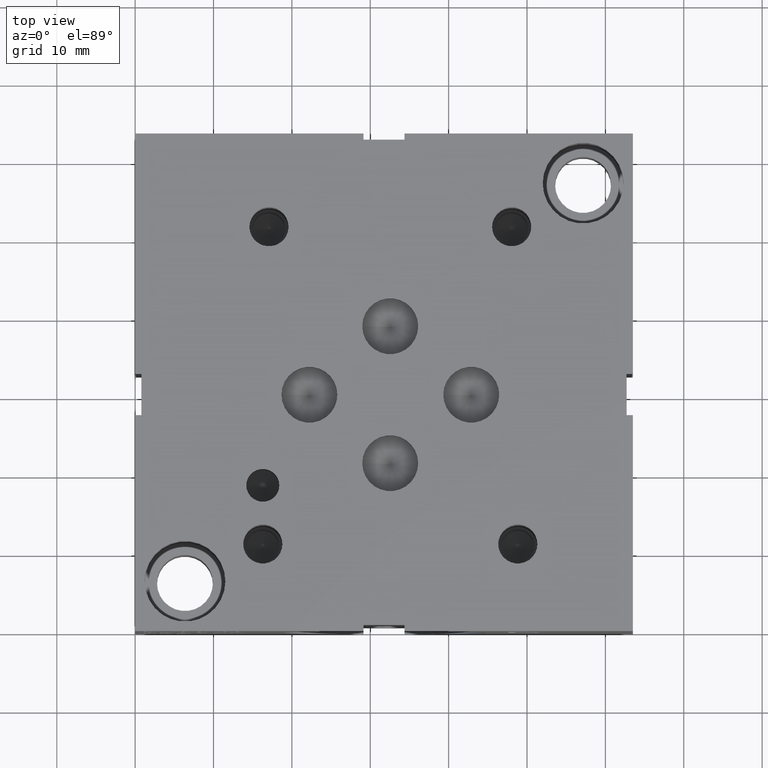
[diagram: clean part render]
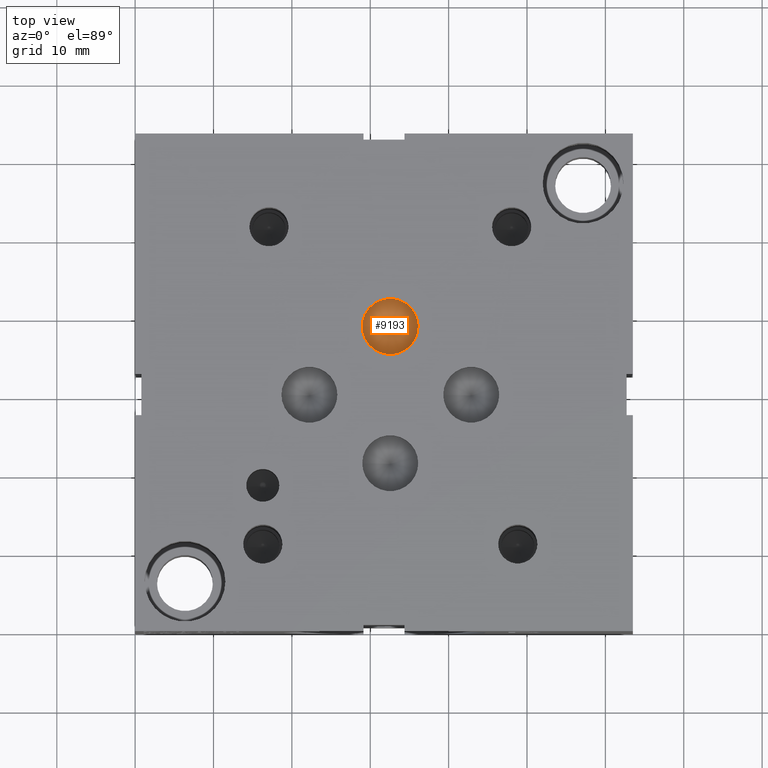
[diagram: same view with one face highlighted and labeled with its STEP entity id]
A machine part, top view. The second image highlights one B-rep face of the part: STEP entity #9193.
In plain terms, the highlighted conical surface has half-angle 60 deg.
Its self-contained STEP definition (entity closure, byte-faithful):
#51=CONICAL_SURFACE('',#9600,1.78435,1.0471975511966);
#128=CIRCLE('',#9601,3.5687);
#129=CIRCLE('',#9602,3.5687);
#937=FACE_OUTER_BOUND('',#1460,.T.);
#1460=EDGE_LOOP('',(#8068,#8069,#8070,#8071));
#2359=LINE('',#15729,#3243);
#3243=VECTOR('',#11251,1.78435);
#4373=VERTEX_POINT('',#15725);
#4374=VERTEX_POINT('',#15726);
#4375=VERTEX_POINT('',#15728);
#5628=EDGE_CURVE('',#4373,#4374,#128,.T.);
#5629=EDGE_CURVE('',#4374,#4375,#2359,.T.);
#5630=EDGE_CURVE('',#4374,#4373,#129,.T.);
#8068=ORIENTED_EDGE('',*,*,#5628,.T.);
#8069=ORIENTED_EDGE('',*,*,#5629,.T.);
#8070=ORIENTED_EDGE('',*,*,#5629,.F.);
#8071=ORIENTED_EDGE('',*,*,#5630,.T.);
#9193=ADVANCED_FACE('',(#937),#51,.F.);
#9600=AXIS2_PLACEMENT_3D('',#15724,#11247,#11248);
#9601=AXIS2_PLACEMENT_3D('',#15727,#11249,#11250);
#9602=AXIS2_PLACEMENT_3D('',#15730,#11252,#11253);
#11247=DIRECTION('center_axis',(0.,0.,1.));
#11248=DIRECTION('ref_axis',(1.,0.,0.));
#11249=DIRECTION('center_axis',(0.,0.,1.));
#11250=DIRECTION('ref_axis',(1.,0.,0.));
#11251=DIRECTION('',(0.866025403784439,1.06057523872491E-16,-0.5));
#11252=DIRECTION('center_axis',(0.,0.,1.));
#11253=DIRECTION('ref_axis',(1.,0.,0.));
#15724=CARTESIAN_POINT('Origin',(32.5374,38.8874,22.3094150471715));
#15725=CARTESIAN_POINT('',(36.1061,38.8874,23.33961));
#15726=CARTESIAN_POINT('',(28.9687,38.8874,23.33961));
#15727=CARTESIAN_POINT('Origin',(32.5374,38.8874,23.33961));
#15728=CARTESIAN_POINT('',(32.5374,38.8874,21.279220094343));
#15729=CARTESIAN_POINT('',(30.75305,38.8874,22.3094150471715));
#15730=CARTESIAN_POINT('Origin',(32.5374,38.8874,23.33961));